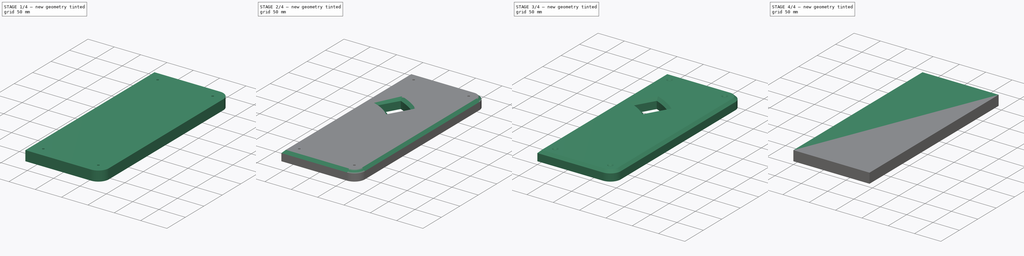
[diagram: build sequence overview — one tinted view per stage of 4, left to right]
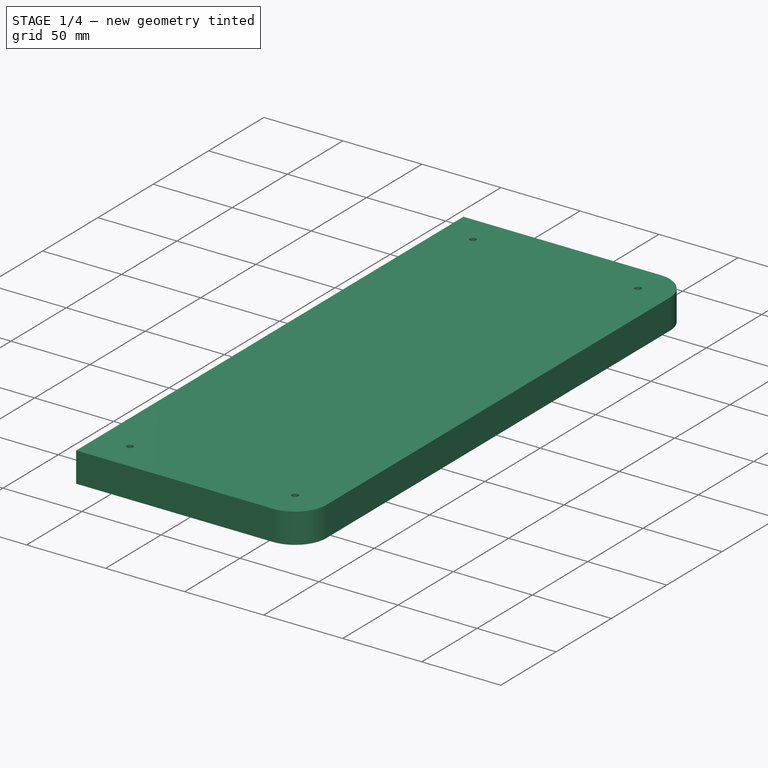
[diagram: stage 1 of 4 — iso view after this stage's code; geometry added in this stage tinted green]
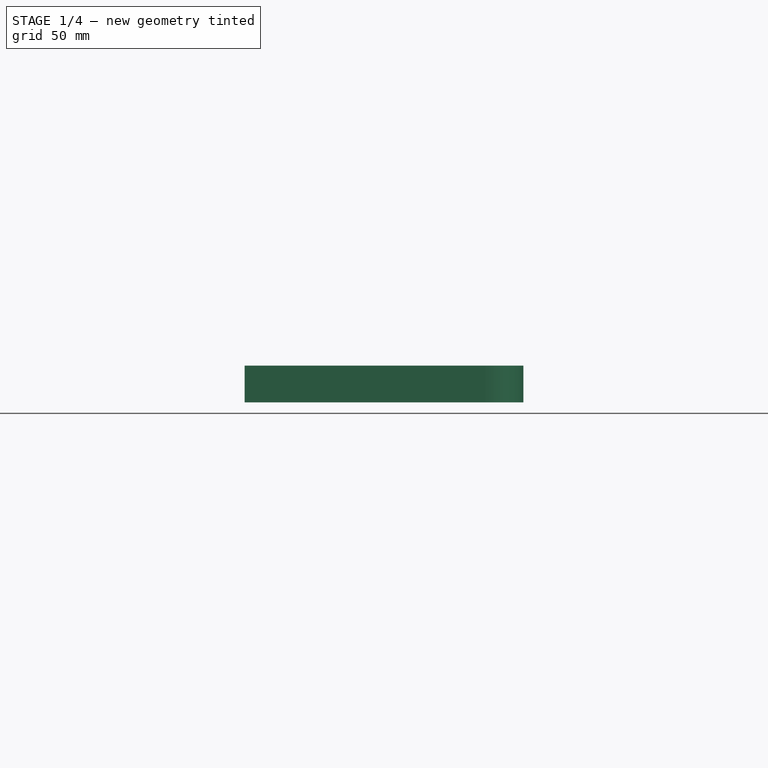
[diagram: stage 1 of 4 — front view after this stage's code; geometry added in this stage tinted green]
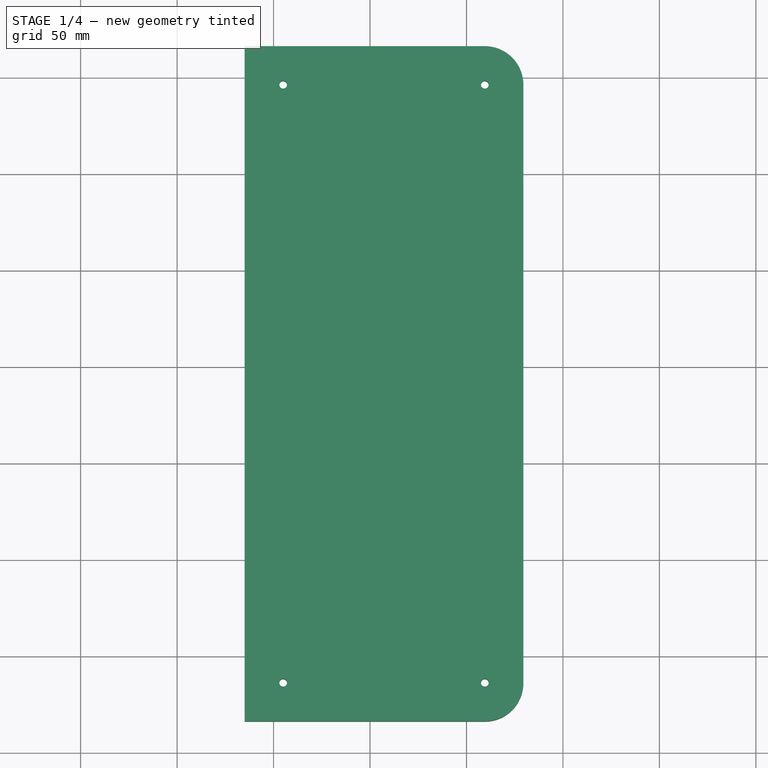
[diagram: stage 1 of 4 — top view after this stage's code; geometry added in this stage tinted green]
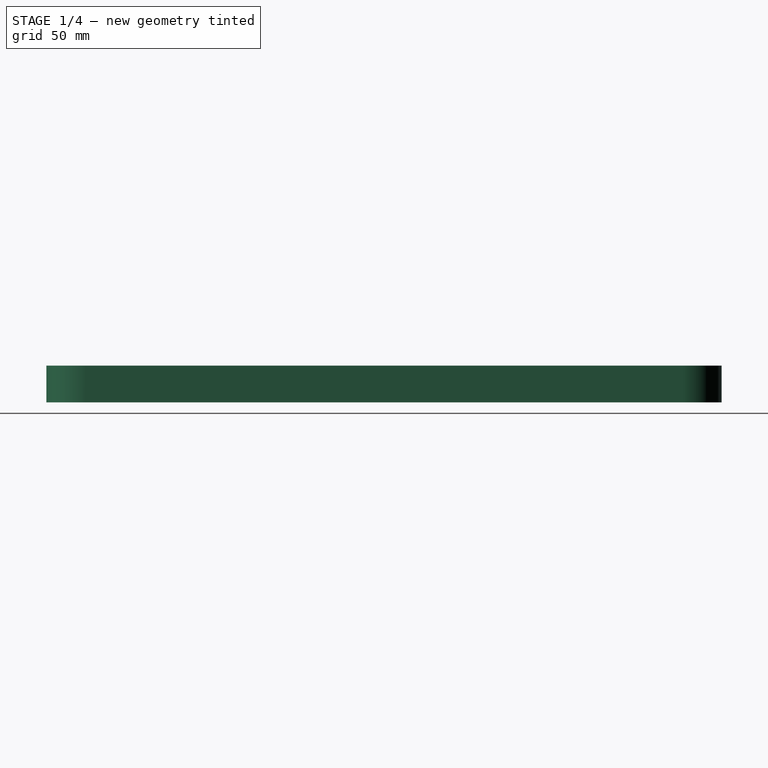
[diagram: stage 1 of 4 — right view after this stage's code; geometry added in this stage tinted green]
FCSTD DOCUMENT  (FreeCAD 0.19R23141 (Git))
Label: prize-panel-cam
License: All rights reserved
LicenseURL: http://en.wikipedia.org/wiki/All_rights_reserved
objects: Path::FeaturePython×11, Sketcher::SketchObject×5, Part::FeaturePython×4, PartDesign::Pocket×3, PartDesign::Chamfer×3, App::FeaturePython×2, App::DocumentObjectGroup×2, Path::FeatureCompoundPython×2, PartDesign::ShapeBinder×1, PartDesign::Pad×1, PartDesign::Fillet×1, PartDesign::Body×1
note: 29 computed .brp shape members not serialized (recipe doc carries the construction recipe); baked Part::Feature solids carry a one-line shape summary decoded from their .brp

FEATURE [Sketcher::SketchObject] Sketch  label="MasterSketch"
  MapMode = 5
  sketch-geometry (22):
    g0: Circle CenterX=-238 CenterY=0 CenterZ=0 NormalX=0 NormalY=0 NormalZ=1 AngleXU=0 Radius=16.25
    g1: Circle CenterX=225 CenterY=0 CenterZ=0 NormalX=0 NormalY=0 NormalZ=1 AngleXU=0 Radius=79.25
    g2: Circle CenterX=-159.323 CenterY=24.4049 CenterZ=0 NormalX=0 NormalY=0 NormalZ=1 AngleXU=0 Radius=66.125
    g3: Circle CenterX=-69.3232 CenterY=-36.4177 CenterZ=0 NormalX=0 NormalY=0 NormalZ=1 AngleXU=0 Radius=55.625
    g4: Circle CenterX=20.6768 CenterY=28.9777 CenterZ=0 NormalX=0 NormalY=0 NormalZ=1 AngleXU=0 Radius=81.875
    g5: Circle CenterX=110.677 CenterY=89.8003 CenterZ=0 NormalX=0 NormalY=0 NormalZ=1 AngleXU=0 Radius=66.125
    g6: LineSegment StartX=-275 StartY=216.2 StartZ=0 EndX=275 EndY=216.2 EndZ=0
    g7: LineSegment StartX=275 StartY=216.2 StartZ=0 EndX=275 EndY=-133.8 EndZ=0
    g8: LineSegment StartX=275 StartY=-133.8 StartZ=0 EndX=-275 EndY=-133.8 EndZ=0
    g9: LineSegment StartX=-275 StartY=-133.8 StartZ=0 EndX=-275 EndY=216.2 EndZ=0
    g10: Circle CenterX=-159.323 CenterY=24.4049 CenterZ=0 NormalX=0 NormalY=0 NormalZ=1 AngleXU=0 Radius=53
    g11: Circle CenterX=-69.3232 CenterY=-36.4177 CenterZ=0 NormalX=0 NormalY=0 NormalZ=1 AngleXU=0 Radius=29.375
    g12: Circle CenterX=20.6768 CenterY=28.9777 CenterZ=0 NormalX=0 NormalY=0 NormalZ=1 AngleXU=0 Radius=42.5
    g13: Circle CenterX=110.677 CenterY=89.8003 CenterZ=0 NormalX=0 NormalY=0 NormalZ=1 AngleXU=0 Radius=13.625
    g14: Circle CenterX=225 CenterY=0 CenterZ=0 NormalX=0 NormalY=0 NormalZ=1 AngleXU=0 Radius=63.5
    g15: LineSegment [constr] StartX=-159.323 StartY=24.4049 StartZ=0 EndX=-159.323 EndY=0 EndZ=0
    g16: LineSegment [constr] StartX=-69.3232 StartY=-36.4177 StartZ=0 EndX=-69.3232 EndY=0 EndZ=0
    g17: LineSegment [constr] StartX=20.6768 StartY=28.9777 StartZ=0 EndX=20.6768 EndY=0 EndZ=0
    g18: LineSegment [constr] StartX=110.677 StartY=89.8003 StartZ=0 EndX=110.677 EndY=0 EndZ=0
    g19: LineSegment [constr] StartX=-159.323 StartY=0 StartZ=0 EndX=-69.3232 EndY=0 EndZ=0
    g20: LineSegment [constr] StartX=-69.3232 StartY=0 StartZ=0 EndX=20.6768 EndY=0 EndZ=0
    g21: LineSegment [constr] StartX=20.6768 StartY=0 StartZ=0 EndX=110.677 EndY=0 EndZ=0
  constraints (61):
    c: PointOnObject(g0,g-1)
    c: PointOnObject(g1,g-1)
    c: Coincident(g6,g7)
    c: Coincident(g7,g8)
    c: Coincident(g8,g9)
    c: Coincident(g9,g6)
    c: Horizontal(g6)
    c: Vertical(g7)
    c: Vertical(g9)
    c: DistanceX(g6,g6) = 550
    c: DistanceY(g9,g9) = 350
    c: Radius(g2) = 66.125
    c: Radius(g0) = 16.25
    c: Tangent(g2,g0)
    c: Radius(g3) = 55.625
    c: Coincident(g10,g2)
    c: Coincident(g11,g3)
    c: Coincident(g12,g4)
    c: Coincident(g13,g5)
    c: Coincident(g14,g1)
    c: Radius(g10) = 53
    c: Radius(g11) = 29.375
    c: Tangent(g3,g10)
    c: Tangent(g4,g11)
    c: Tangent(g5,g12)
    c: Tangent(g1,g5)
    c: Radius(g4) = 81.875
    c: Radius(g12) = 42.5
    c: Radius(g5) = 66.125
    c: Radius(g13) = 13.625
    c: Coincident(g15,g2)
    c: PointOnObject(g15,g-1)
    c: Coincident(g16,g3)
    c: PointOnObject(g16,g-1)
    c: Vertical(g16)
    c: Coincident(g17,g4)
    c: PointOnObject(g17,g-1)
    c: Vertical(g17)
    c: Coincident(g18,g5)
    c: PointOnObject(g18,g-1)
    c: Vertical(g18)
    c: Vertical(g15)
    c: Coincident(g19,g15)
    c: Coincident(g19,g16)
    c: Coincident(g20,g16)
    c: Coincident(g20,g17)
    c: Coincident(g21,g17)
    c: Coincident(g21,g18)
    c: Radius(g1) = 79.25
    c: Radius(g14) = 63.5
    c: Distance(g19) = 90
    c: DistanceX(g6,g0) = 37
    c: Symmetric(g8,g7,g-2)
    c: Equal(g19,g20)
    c: Equal(g20,g21)
    c: Distance(g2,g3) = 108.625
    c: Distance(g3,g4) = 111.25
    c: Distance(g4,g5) = 108.625
    c: Distance(g5,g1) = 145.375
    c: DistanceY(g8,g-1) = 133.8
    c: DistanceX(g1,g6) = 50
FEATURE [PartDesign::ShapeBinder] ShapeBinder005
  Support = -> [Sketch]
  TraceSupport = false
FEATURE [Sketcher::SketchObject] Sketch024
  ExternalGeometry = -> [ShapeBinder005]
  MapMode = 5
  Support = -> [XY_Plane013]
  sketch-geometry (4):
    g0: LineSegment StartX=235 StartY=216.2 StartZ=0 EndX=379.5 EndY=216.2 EndZ=0
    g1: LineSegment StartX=379.5 StartY=216.2 StartZ=0 EndX=379.5 EndY=-133.8 EndZ=0
    g2: LineSegment StartX=379.5 StartY=-133.8 StartZ=0 EndX=235 EndY=-133.8 EndZ=0
    g3: LineSegment StartX=235 StartY=-133.8 StartZ=0 EndX=235 EndY=216.2 EndZ=0
  constraints (12):
    c: Coincident(g0,g1)
    c: Coincident(g1,g2)
    c: Coincident(g2,g3)
    c: Coincident(g3,g0)
    c: Horizontal(g0)
    c: Horizontal(g2)
    c: Vertical(g1)
    c: Vertical(g3)
    c: PointOnObject(g-3,g2)
    c: PointOnObject(g-3,g0)
    c: DistanceX(g0,g0) = 144.5
    c: DistanceX(g0,g-3) = 40
FEATURE [PartDesign::Pad] Pad017
  Direction = (1,1,1)
  Length = 19
  Length2 = 100
  Profile = -> Sketch024
  Refine = true
  Type = 0
FEATURE [PartDesign::Fillet] Fillet007
  Base = -> Pad017 [Edge2,Edge5]
  BaseFeature = -> Pad017
  Radius = 20
  Refine = true
  SupportTransform = false
FEATURE [Sketcher::SketchObject] Sketch025
  ExternalGeometry = -> [Fillet007]
  MapMode = 5
  Placement = pos=(0,0,19) rot=(0,0,1;0rad)
  Support = -> [Fillet007]
  sketch-geometry (4):
    g0: Circle CenterX=359.5 CenterY=196.2 CenterZ=0 NormalX=0 NormalY=0 NormalZ=1 AngleXU=0 Radius=2
    g1: Circle CenterX=359.5 CenterY=-113.8 CenterZ=0 NormalX=0 NormalY=0 NormalZ=1 AngleXU=0 Radius=2
    g2: Circle CenterX=255 CenterY=-113.8 CenterZ=0 NormalX=0 NormalY=0 NormalZ=1 AngleXU=0 Radius=2
    g3: Circle CenterX=255 CenterY=196.2 CenterZ=0 NormalX=0 NormalY=0 NormalZ=1 AngleXU=0 Radius=2
  constraints (10):
    c: Coincident(g0,g-3)
    c: Coincident(g1,g-4)
    c: DistanceX(g-5,g3) = 20
    c: Vertical(g3,g2)
    c: Horizontal(g2,g1)
    c: Equal(g3,g0)
    c: Equal(g0,g1)
    c: Equal(g1,g2)
    c: Radius(g2) = 2
    c: Horizontal(g3,g0)
FEATURE [PartDesign::Pocket] Pocket015
  BaseFeature = -> Fillet007
  Length = 5
  Length2 = 100
  Profile = -> Sketch025
  Refine = true
  Type = 1
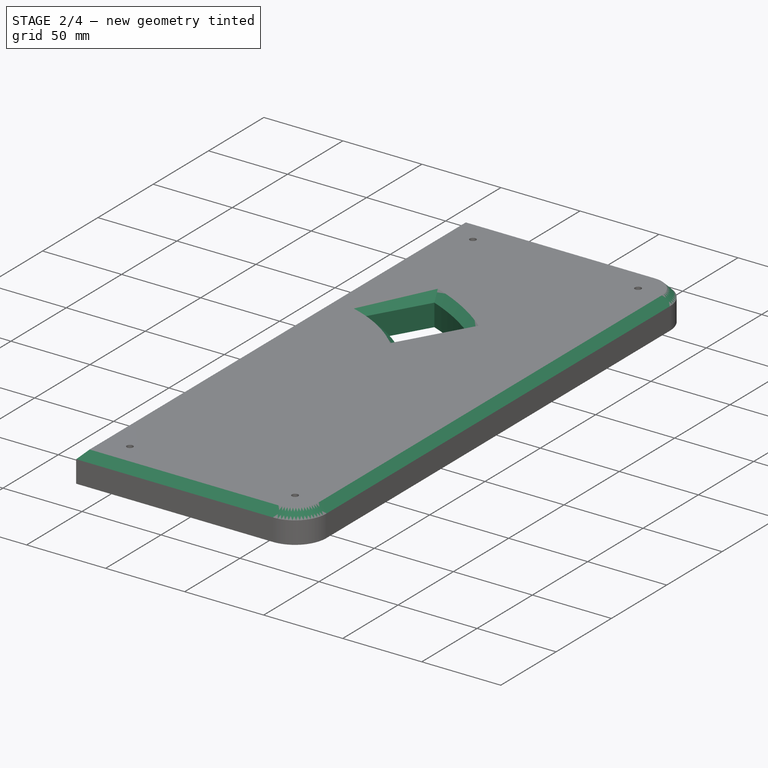
[diagram: stage 2 of 4 — iso view after this stage's code; geometry added in this stage tinted green]
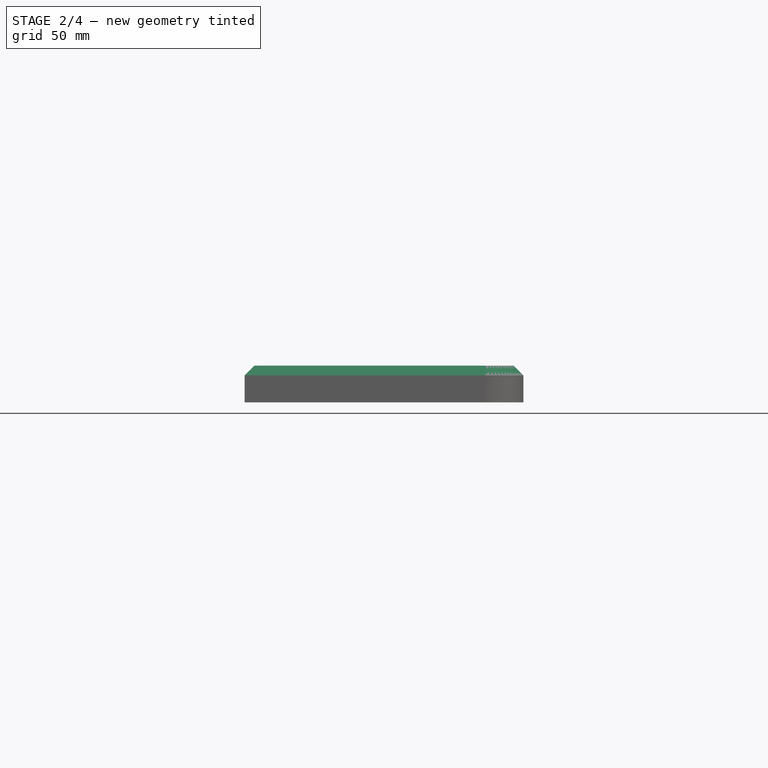
[diagram: stage 2 of 4 — front view after this stage's code; geometry added in this stage tinted green]
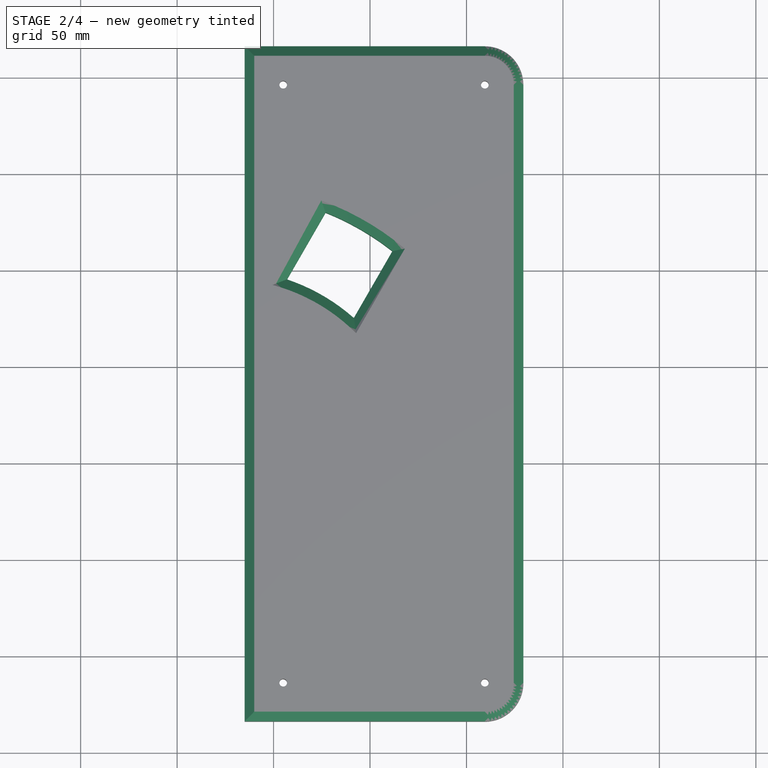
[diagram: stage 2 of 4 — top view after this stage's code; geometry added in this stage tinted green]
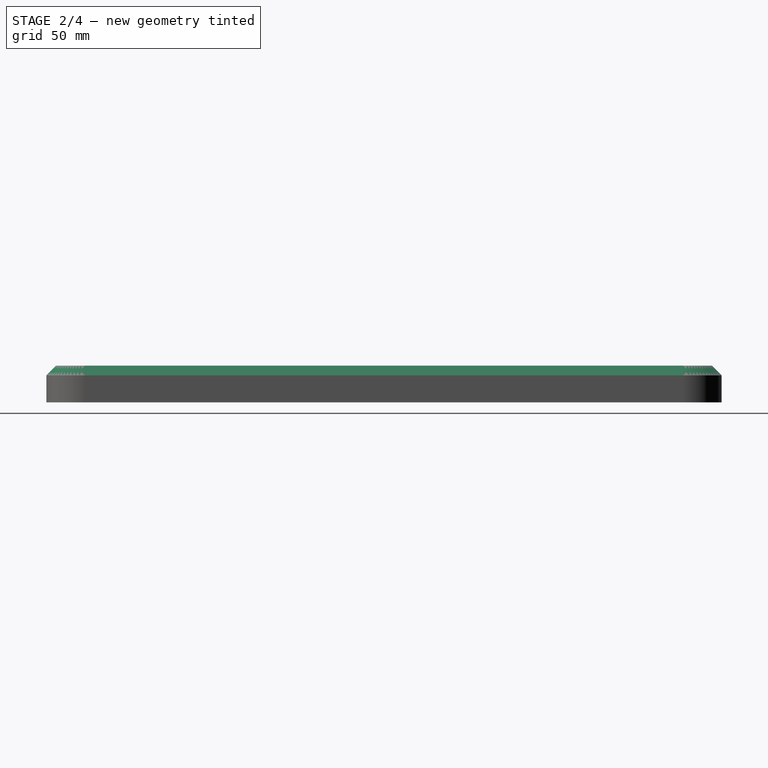
[diagram: stage 2 of 4 — right view after this stage's code; geometry added in this stage tinted green]
FEATURE [PartDesign::Chamfer] Chamfer005
  Angle = 45
  Base = -> Pocket015 [Edge4,Edge17]
  BaseFeature = -> Pocket015
  ChamferType = 0
  FlipDirection = false
  Refine = true
  Size = 5
  Size2 = 1
  SupportTransform = false
FEATURE [Sketcher::SketchObject] Sketch030
  ExternalGeometry = -> [ShapeBinder005]
  MapMode = 5
  Placement = pos=(0,0,19) rot=(0,0,1;0rad)
  Support = -> [Chamfer005]
  sketch-geometry (7):
    g0: ArcOfCircle [constr] CenterX=225 CenterY=0 CenterZ=0 NormalX=0 NormalY=0 NormalZ=1 AngleXU=0 Radius=140 StartAngle=5.23599 EndAngle=7.33038
    g1: LineSegment [constr] StartX=225 StartY=0 StartZ=0 EndX=295 EndY=-121.244 EndZ=0
    g2: LineSegment [constr] StartX=225 StartY=0 StartZ=0 EndX=295 EndY=121.244 EndZ=0
    g3: LineSegment StartX=256.962 StartY=95.359 StartZ=0 EndX=276.962 EndY=130 EndZ=0
    g4: LineSegment StartX=311.603 StartY=110 StartZ=0 EndX=291.603 EndY=75.359 EndZ=0
    g5: ArcOfCircle CenterX=225 CenterY=0 CenterZ=0 NormalX=0 NormalY=0 NormalZ=1 AngleXU=0 Radius=100.573 StartAngle=0.847002 EndAngle=1.24739
    g6: ArcOfCircle CenterX=225 CenterY=0 CenterZ=0 NormalX=0 NormalY=0 NormalZ=1 AngleXU=0 Radius=140 StartAngle=0.90385 EndAngle=1.19055
  constraints (20):
    c: Coincident(g0,g-3)
    c: Coincident(g1,g0)
    c: Coincident(g1,g0)
    c: Coincident(g2,g0)
    c: Coincident(g2,g0)
    c: Angle(g2) = 1.0472
    c: Symmetric(g0,g0,g-1)
    c: PointOnObject(g4,g0)
    c: Radius(g0) = 140
    c: Coincident(g5,g0)
    c: Coincident(g5,g3)
    c: Coincident(g5,g4)
    c: Coincident(g6,g5)
    c: Coincident(g6,g3)
    c: Coincident(g6,g4)
    c: Distance(g4,g3) = 40
    c: Parallel(g4,g3)
    c: Parallel(g3,g2)
    c: Symmetric(g3,g4,g2)
    c: Distance(g4) = 40
FEATURE [PartDesign::Pocket] Pocket020
  BaseFeature = -> Chamfer005
  Length = 5
  Length2 = 100
  Profile = -> Sketch030
  Refine = true
  Type = 1
FEATURE [PartDesign::Chamfer] Chamfer006
  Angle = 45
  Base = -> Pocket020 [Edge40,Edge39,Edge38,Edge37]
  BaseFeature = -> Pocket020
  ChamferType = 0
  FlipDirection = false
  Refine = true
  Size = 5
  Size2 = 1
  SupportTransform = false
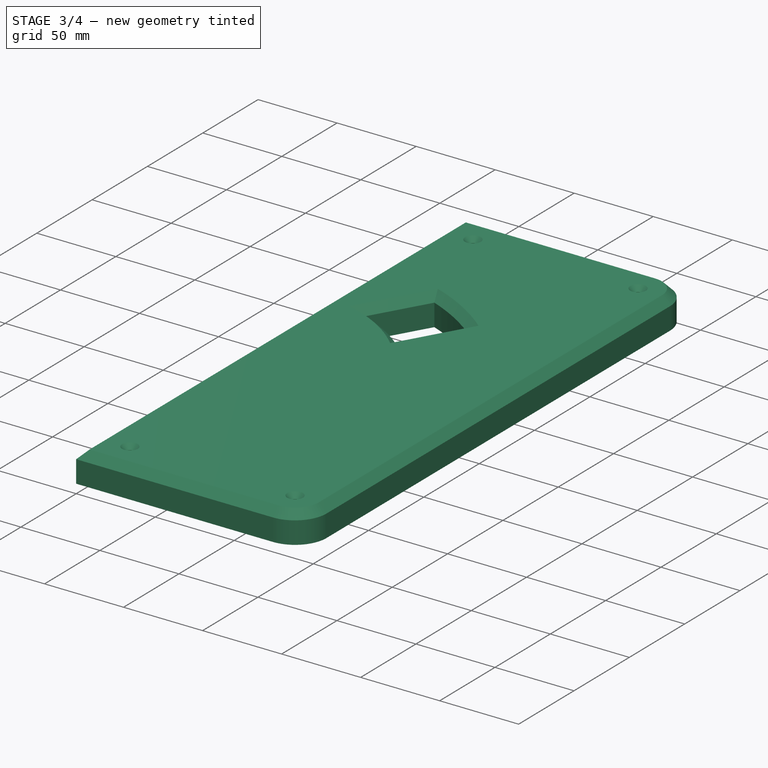
[diagram: stage 3 of 4 — iso view after this stage's code; geometry added in this stage tinted green]
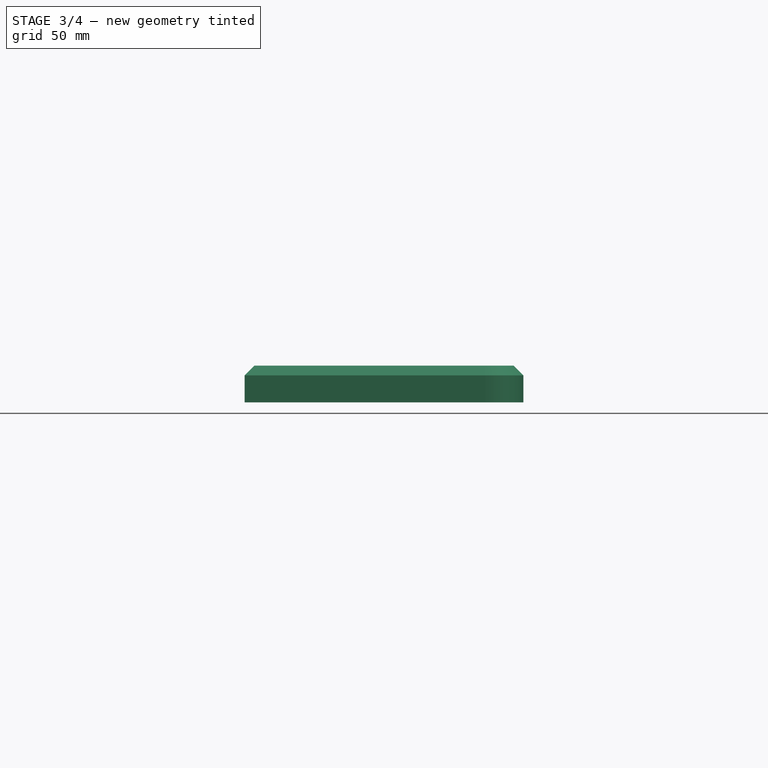
[diagram: stage 3 of 4 — front view after this stage's code; geometry added in this stage tinted green]
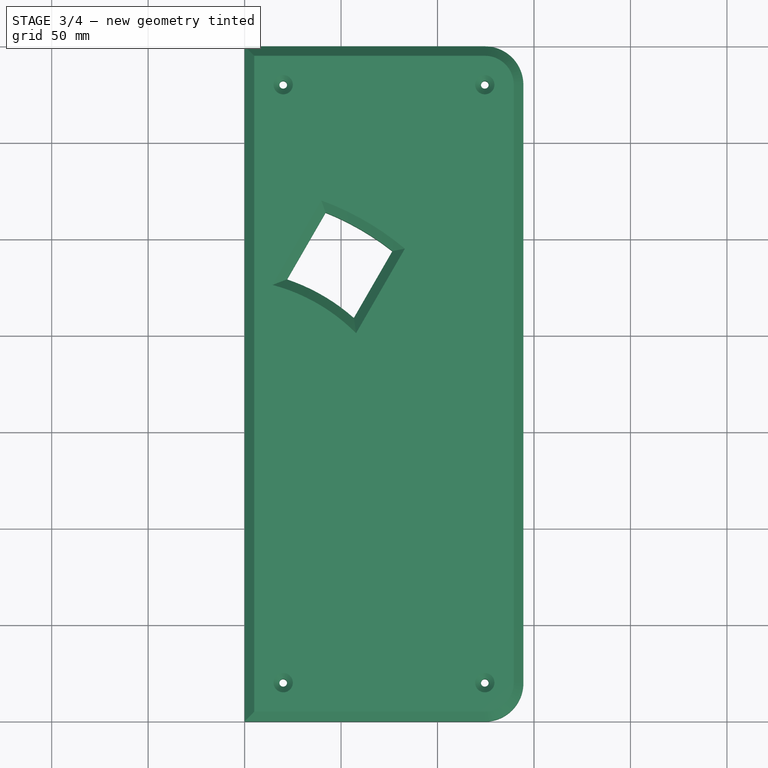
[diagram: stage 3 of 4 — top view after this stage's code; geometry added in this stage tinted green]
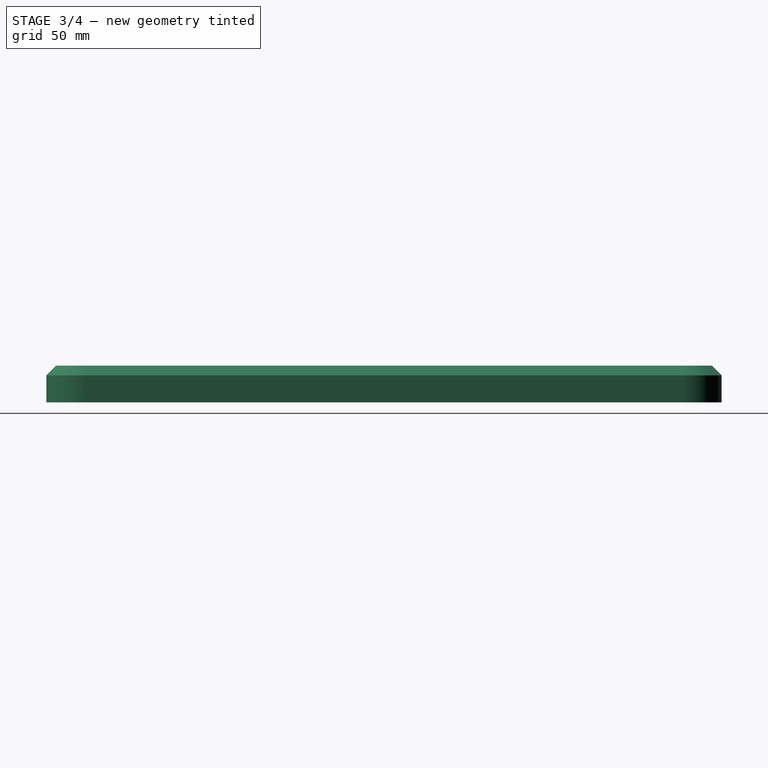
[diagram: stage 3 of 4 — right view after this stage's code; geometry added in this stage tinted green]
FEATURE [PartDesign::Chamfer] Chamfer007
  Angle = 45
  Base = -> Chamfer006 [Edge14,Edge13,Edge11,Edge12]
  BaseFeature = -> Chamfer006
  ChamferType = 0
  FlipDirection = false
  Refine = true
  Size = 3
  Size2 = 1
  SupportTransform = false
FEATURE [Sketcher::SketchObject] Sketch045
  ExternalGeometry = -> [Chamfer007]
  MapMode = 5
  Placement = pos=(0,0,0) rot=(1,0,0;3.14159rad)
  Support = -> [Chamfer007]
  sketch-geometry (4):
    g0: LineSegment StartX=235 StartY=108.8 StartZ=0 EndX=366 EndY=108.8 EndZ=0
    g1: LineSegment StartX=366 StartY=108.8 StartZ=0 EndX=366 EndY=88.8 EndZ=0
    g2: LineSegment StartX=366 StartY=88.8 StartZ=0 EndX=235 EndY=88.8 EndZ=0
    g3: LineSegment StartX=235 StartY=88.8 StartZ=0 EndX=235 EndY=108.8 EndZ=0
  constraints (12):
    c: Coincident(g0,g1)
    c: Coincident(g1,g2)
    c: Coincident(g2,g3)
    c: Coincident(g3,g0)
    c: Horizontal(g0)
    c: Horizontal(g2)
    c: Vertical(g1)
    c: Vertical(g3)
    c: PointOnObject(g0,g-3)
    c: DistanceY(g0,g-3) = 25
    c: DistanceY(g3,g3) = 20
    c: DistanceX(g0,g0) = 131
FEATURE [PartDesign::Pocket] Pocket029
  BaseFeature = -> Chamfer007
  Length = 14
  Length2 = 100
  Profile = -> Sketch045
  Refine = true
  Type = 0
FEATURE [Path::FeaturePython] Profile  # Path/CAM operation (typed FeaturePython)
  Active = true
  AreaParams:
    Tolerance = 1e-07
    FitArcs = True
    Simplify = False
    CleanDistance = 0.0
    Accuracy = 0.01
    Unit = 1.0
    MinArcPoints = 4
    MaxArcPoints = 100
    ClipperScale = 10000000.0
    Fill = 0
    Coplanar = 0
    Reorient = True
    Outline = False
    Explode = False
    OpenMode = 0
    Deflection = 0.01
    SubjectFill = 0
    ClipFill = 0
    Offset = -2.5
    ExtraPass = 0
    Stepover = 0.0
    LastStepover = 0.0
    JoinType = 0
    EndType = 0
    MiterLimit = 2.0
    RoundPrecision = 0.0
    PocketMode = 0
    ToolRadius = 1.0
    PocketExtraOffset = 0.0
    PocketStepover = 0.0
    PocketLastStepover = 0.0
    FromCenter = False
    Angle = 45.0
    AngleShift = 0.0
    Shift = 0.0
    Thicken = False
    SectionCount = -1
    Stepdown = 1.0
    SectionOffset = 0.0
    SectionTolerance = 1e-06
    SectionMode = 2
    Project = False
  AttemptInverseAngle = true
  Base = -> [Clone]
  ClearanceHeight = 5
  CoolantMode = None
  CycleTime = 00:01:20
  Direction = 0
  EnableRotation = 0
  ExpandProfile = 0
  ExpandProfileStepOver = 100
  FinalDepth = -19.5
  HandleMultipleFeatures = 1
  InverseAngle = false
  JoinType = 0
  LimitDepthToFace = true
  MiterLimit = 0.1
  OffsetExtra = 0
  OpFinalDepth = -19
  OpStartDepth = 0
  OpStockZMax = 0
  OpStockZMin = -19
  OpToolDiameter = 5
  PathParams = {'orientation': 1, 'feedrate': 16.666666666666668, 'feedrate_v': 1.6666666666666667, 'verbose': True, 'resume_height': 3.0, 'retraction': 5.0, 'return_end': True, 'preamble': False}
  ReverseDirection = false
  SafeHeight = 3
  Side = 1
  StartDepth = 0
  StartPoint = (0,0,0)
  StepDown = 5
  ToolController = -> Default_Tool
  UseComp = true
  UseStartPoint = false
  processCircles = false
  processHoles = false
  processPerimeter = true
  expr: StartDepth = OpStartDepth
  expr: FinalDepth = -19.5
  expr: StepDown = OpToolDiameter
  expr: SafeHeight = OpStockZMax + SetupSheet.SafeHeightOffset
  expr: ClearanceHeight = OpStockZMax + SetupSheet.ClearanceHeightOffset
FEATURE [Path::FeaturePython] DressupTag  # Path/CAM operation (typed FeaturePython)
  Angle = 45
  Base = -> Profile
  Height = 5
  Positions = (2) [(41.5363,223.063,0),(54.5414,255.21,0)]
  Radius = 0
  SegmentationFactor = 50
  Width = 3.52
FEATURE [Path::FeaturePython] Profile001  # Path/CAM operation (typed FeaturePython)
  Active = true
  AreaParams:
    Tolerance = 1e-07
    FitArcs = True
    Simplify = False
    CleanDistance = 0.0
    Accuracy = 0.01
    Unit = 1.0
    MinArcPoints = 4
    MaxArcPoints = 100
    ClipperScale = 10000000.0
    Fill = 0
    Coplanar = 0
    Reorient = True
    Outline = False
    Explode = False
    OpenMode = 0
    Deflection = 0.01
    SubjectFill = 0
    ClipFill = 0
    Offset = 2.5
    ExtraPass = 0
    Stepover = 0.0
    LastStepover = 0.0
    JoinType = 0
    EndType = 0
    MiterLimit = 2.0
    RoundPrecision = 0.0
    PocketMode = 0
    ToolRadius = 1.0
    PocketExtraOffset = 0.0
    PocketStepover = 0.0
    PocketLastStepover = 0.0
    FromCenter = False
    Angle = 45.0
    AngleShift = 0.0
    Shift = 0.0
    Thicken = False
    SectionCount = -1
    Stepdown = 1.0
    SectionOffset = 0.0
    SectionTolerance = 1e-06
    SectionMode = 2
    Project = False
  AttemptInverseAngle = true
  ClearanceHeight = 5
  CoolantMode = None
  CycleTime = 00:04:47
  Direction = 0
  EnableRotation = 0
  ExpandProfile = 0
  ExpandProfileStepOver = 100
  FinalDepth = -19.5
  HandleMultipleFeatures = 1
  InverseAngle = false
  JoinType = 0
  LimitDepthToFace = true
  MiterLimit = 0.1
  OffsetExtra = 0
  OpFinalDepth = -19
  OpStartDepth = 0
  OpStockZMax = 0
  OpStockZMin = -19
  OpToolDiameter = 5
  PathParams = {'orientation': 1, 'feedrate': 16.666666666666668, 'feedrate_v': 1.6666666666666667, 'verbose': True, 'resume_height': 3.0, 'retraction': 5.0, 'return_end': True, 'preamble': False}
  ReverseDirection = false
  SafeHeight = 3
  Side = 0
  StartDepth = 0
  StartPoint = (0,0,0)
  StepDown = 5
  ToolController = -> Default_Tool
  UseComp = true
  UseStartPoint = false
  processCircles = false
  processHoles = false
  processPerimeter = true
  expr: StartDepth = OpStartDepth
  expr: FinalDepth = -19.5
  expr: StepDown = OpToolDiameter
  expr: SafeHeight = OpStockZMax + SetupSheet.SafeHeightOffset
  expr: ClearanceHeight = OpStockZMax + SetupSheet.ClearanceHeightOffset
FEATURE [Path::FeaturePython] DressupTag001  # Path/CAM operation (typed FeaturePython)
  Angle = 45
  Base = -> Profile001
  Height = 5
  Positions = (4) [(-2.5,87.5,0),(-2.5,262.5,0),(146.999,252.559,0),(147,97.5196,0)]
  Radius = 0
  SegmentationFactor = 50
  Width = 35
FEATURE [Path::FeatureCompoundPython] Operations  # Path/CAM operation (typed FeaturePython)
  Group = -> [DressupTag,DressupTag001]
  UsePlacements = false
FEATURE [Path::FeaturePython] Job  # Path/CAM operation (typed FeaturePython)
  CycleTime = 00:06:07
  Fixtures = G54
  GeometryTolerance = 0.01
  LastPostProcessDate = 2020-12-04 19:26:58.863579
  LastPostProcessOutput = <userpath>/cad/gears-puzzle-2/cam/prize-panel-top-cut.FCStd
  Model = -> Model
  Operations = -> Operations
  OrderOutputBy = 0
  PostProcessor = 4
  SetupSheet = -> SetupSheet
  SplitOutput = false
  Stock = -> Stock001
  ToolController = -> [Default_Tool]
FEATURE [Part::FeaturePython] Clone001  label="Model-PrizePanel001"  # Draft clone (typed FeaturePython)
  AttacherType = Attacher::AttachEngine3D
  Fuse = false
  Objects = -> [Body013]
  PathResource = Model
  Placement = pos=(-235,133.8,-19) rot=(0,0,1;0rad)
  Scale = (1,1,1)
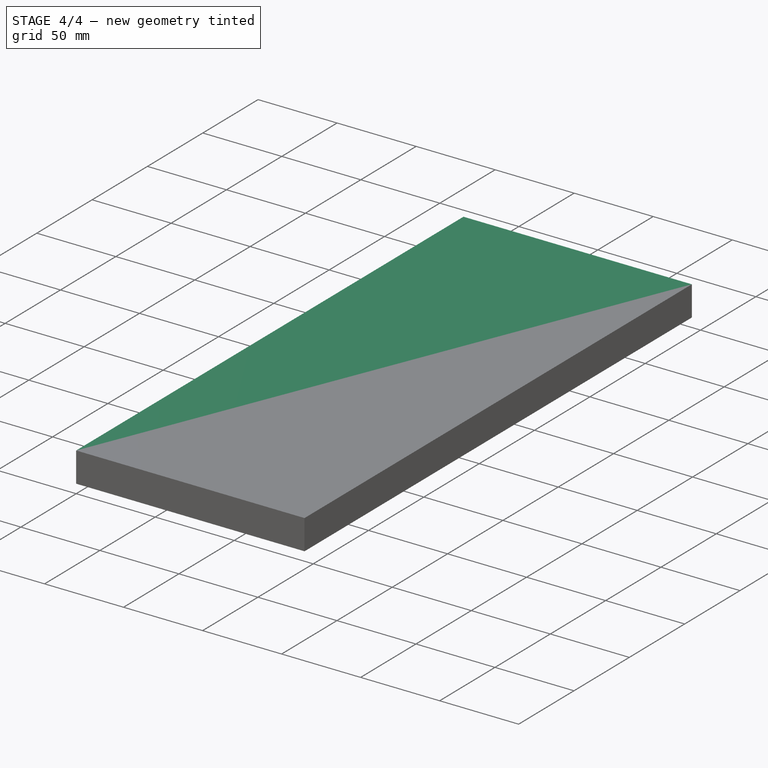
[diagram: stage 4 of 4 — iso view after this stage's code; geometry added in this stage tinted green]
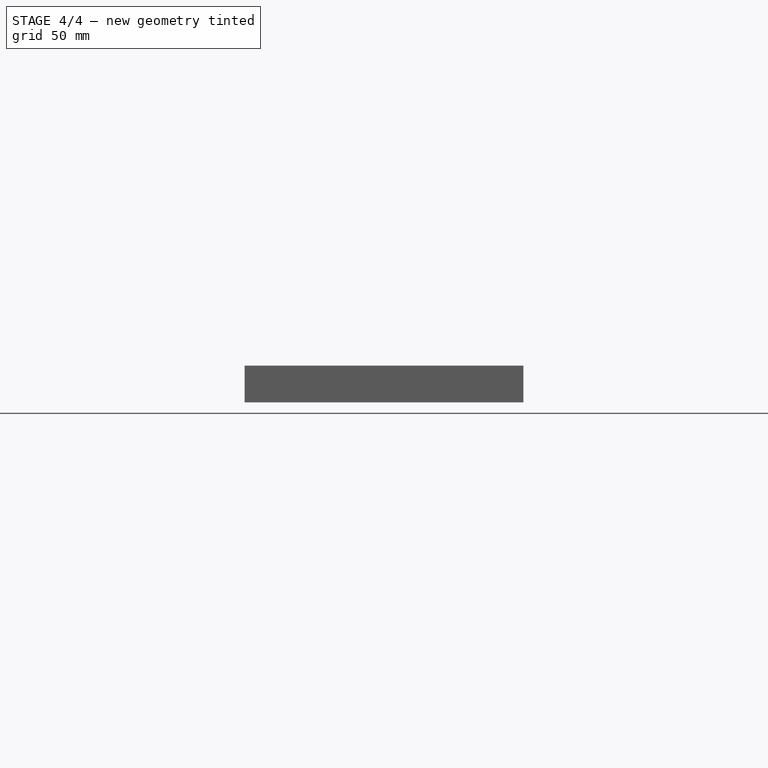
[diagram: stage 4 of 4 — front view after this stage's code; geometry added in this stage tinted green]
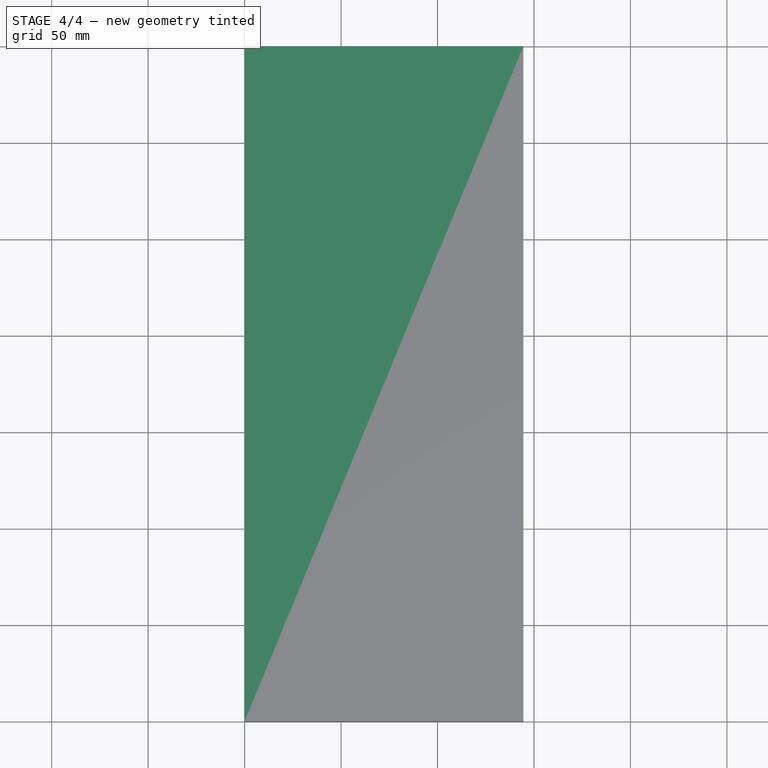
[diagram: stage 4 of 4 — top view after this stage's code; geometry added in this stage tinted green]
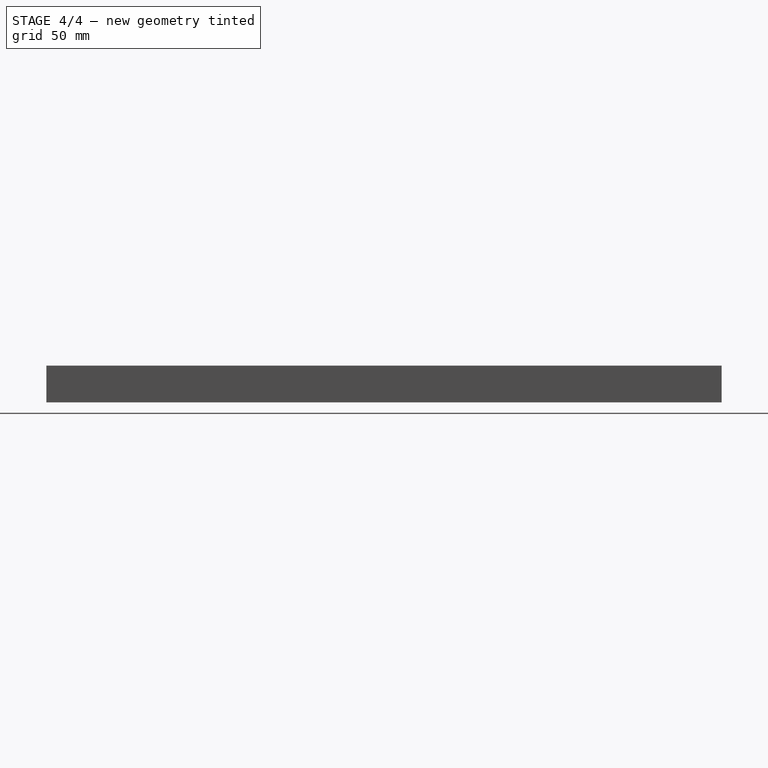
[diagram: stage 4 of 4 — right view after this stage's code; geometry added in this stage tinted green]
FEATURE [PartDesign::Body] Body013  label="PrizePanel"
  Group = -> [ShapeBinder005,Sketch024,Pad017,Fillet007,Sketch025,Pocket015,Chamfer005,Sketch030,Pocket020,Chamfer006,Chamfer007,Sketch045,Pocket029]
  Origin = -> Origin013
  Placement = pos=(0,0,10) rot=(0,0,1;0rad)
  Tip = -> Pocket029
FEATURE [App::FeaturePython] SetupSheet  # Path/CAM operation (typed FeaturePython)
  ClearanceHeightExpression = OpStockZMax+SetupSheet.ClearanceHeightOffset
  ClearanceHeightOffset = 5
  CoolantMode = 0
  CoolantModes = None | Flood | Mist
  FinalDepthExpression = OpFinalDepth
  HorizRapid = 0
  SafeHeightExpression = OpStockZMax+SetupSheet.SafeHeightOffset
  SafeHeightOffset = 3
  StartDepthExpression = OpStartDepth
  StepDownExpression = OpToolDiameter
  VertRapid = 0
FEATURE [Part::FeaturePython] Clone  label="Model-PrizePanel"  # Draft clone (typed FeaturePython)
  AttacherType = Attacher::AttachEngine3D
  Fuse = false
  Objects = -> [Body013]
  PathResource = Model
  Placement = pos=(-235,133.8,-19) rot=(0,0,1;0rad)
  Scale = (1,1,1)
FEATURE [App::DocumentObjectGroup] Model
  Group = -> [Clone]
FEATURE [Path::FeaturePython] Default_Tool  label="TC: Default Tool"  # Path/CAM operation (typed FeaturePython)
  HorizFeed = 16.6667
  HorizRapid = 0
  SpindleDir = 0
  SpindleSpeed = 24000
  ToolNumber = 1
  VertFeed = 1.66667
  VertRapid = 0
  expr: VertRapid = SetupSheet.VertRapid
  expr: HorizRapid = SetupSheet.HorizRapid
FEATURE [Part::FeaturePython] Stock001  # WARN: FeaturePython — macro-defined, semantics opaque (R4)
  Base = -> Model
  ExtXneg = 0
  ExtXpos = 0
  ExtYneg = 0
  ExtYpos = 0
  ExtZneg = 0
  ExtZpos = 0
  Placement = pos=(0,0,-19) rot=(0,0,1;0rad)
  StockType = FromBase
FEATURE [Path::FeaturePython] Default_Tool001  label="TC: Default Tool001"  # Path/CAM operation (typed FeaturePython)
  HorizFeed = 16.6667
  HorizRapid = 0
  SpindleDir = 0
  SpindleSpeed = 24000
  ToolNumber = 1
  VertFeed = 1.66667
  VertRapid = 0
  expr: HorizRapid = SetupSheet001.HorizRapid
  expr: VertRapid = SetupSheet001.VertRapid
FEATURE [App::FeaturePython] SetupSheet001  # Path/CAM operation (typed FeaturePython)
  ClearanceHeightExpression = OpStockZMax+SetupSheet.ClearanceHeightOffset
  ClearanceHeightOffset = 5
  CoolantMode = 0
  CoolantModes = None | Flood | Mist
  FinalDepthExpression = OpFinalDepth
  HorizRapid = 0
  SafeHeightExpression = OpStockZMax+SetupSheet.SafeHeightOffset
  SafeHeightOffset = 3
  StartDepthExpression = OpStartDepth
  StepDownExpression = OpToolDiameter
  VertRapid = 0
FEATURE [App::DocumentObjectGroup] Model001
  Group = -> [Clone001]
FEATURE [Part::FeaturePython] Stock002  # WARN: FeaturePython — macro-defined, semantics opaque (R4)
  Base = -> Model001
  ExtXneg = 0
  ExtXpos = 0
  ExtYneg = 0
  ExtYpos = 0
  ExtZneg = 0
  ExtZpos = 0
  Placement = pos=(0,0,-19) rot=(0,0,1;0rad)
  StockType = FromBase
FEATURE [Path::FeaturePython] Deburr  # Path/CAM operation (typed FeaturePython)
  Active = true
  Base = -> [Clone001]
  ClearanceHeight = 5
  CoolantMode = None
  CycleTime = 00:01:34
  Direction = 0
  EntryPoint = 0
  ExtraDepth = 0
  Join = 0
  OpStockZMax = 0
  OpStockZMin = -19
  OpToolDiameter = 6
  SafeHeight = 3
  Side = 0
  StartDepth = 0
  StepDown = 0
  ToolController = -> Default_Tool001
  Width = 2.6
  expr: StepDown = 0mm
  expr: SafeHeight = OpStockZMax + SetupSheet.SafeHeightOffset
  expr: ClearanceHeight = OpStockZMax + SetupSheet.ClearanceHeightOffset
FEATURE [Path::FeaturePython] Deburr001  # Path/CAM operation (typed FeaturePython)
  Active = true
  Base = -> [Clone001]
  ClearanceHeight = 5
  CoolantMode = None
  CycleTime = 00:00:37
  Direction = 0
  EntryPoint = 0
  ExtraDepth = 0
  Join = 0
  OpStockZMax = 0
  OpStockZMin = -19
  OpToolDiameter = 6
  SafeHeight = 3
  Side = 0
  StartDepth = 0
  StepDown = 0
  ToolController = -> Default_Tool001
  Width = 2.5
  expr: StepDown = 0mm
  expr: SafeHeight = OpStockZMax + SetupSheet.SafeHeightOffset
  expr: ClearanceHeight = OpStockZMax + SetupSheet.ClearanceHeightOffset
FEATURE [Path::FeaturePython] Deburr002  # Path/CAM operation (typed FeaturePython)
  Active = true
  Base = -> [Clone001]
  ClearanceHeight = 5
  CoolantMode = None
  CycleTime = 00:01:33
  Direction = 0
  EntryPoint = 0
  ExtraDepth = 0
  Join = 0
  OpStockZMax = 0
  OpStockZMin = -19
  OpToolDiameter = 6
  SafeHeight = 3
  Side = 0
  StartDepth = 0
  StepDown = 0
  ToolController = -> Default_Tool001
  Width = 2.5
  expr: StepDown = 0mm
  expr: SafeHeight = OpStockZMax + SetupSheet.SafeHeightOffset
  expr: ClearanceHeight = OpStockZMax + SetupSheet.ClearanceHeightOffset
FEATURE [Path::FeatureCompoundPython] Operations001  # Path/CAM operation (typed FeaturePython)
  Group = -> [Deburr,Deburr001,Deburr002]
  UsePlacements = false
FEATURE [Path::FeaturePython] Job001  # Path/CAM operation (typed FeaturePython)
  CycleTime = 00:03:44
  Fixtures = G54
  GeometryTolerance = 0.01
  LastPostProcessDate = 2020-12-04 19:31:17.296633
  LastPostProcessOutput = <userpath>/cad/gears-puzzle-2/gcode/prize-panel-chamfer.gcode
  Model = -> Model001
  Operations = -> Operations001
  OrderOutputBy = 0
  PostProcessor = 4
  SetupSheet = -> SetupSheet001
  SplitOutput = false
  Stock = -> Stock002
  ToolController = -> [Default_Tool001]
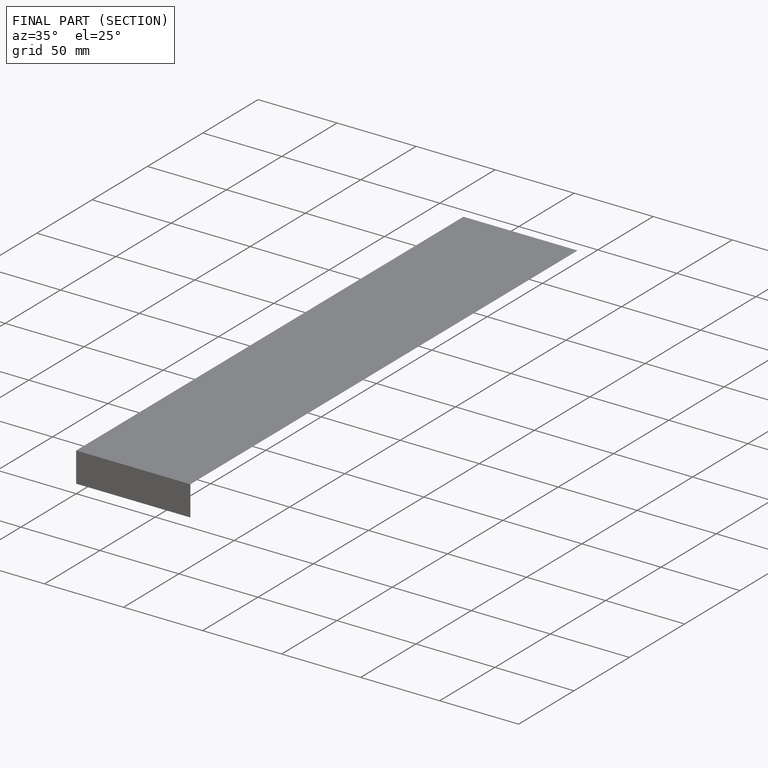
[diagram: finished part — half-section view (interior)]
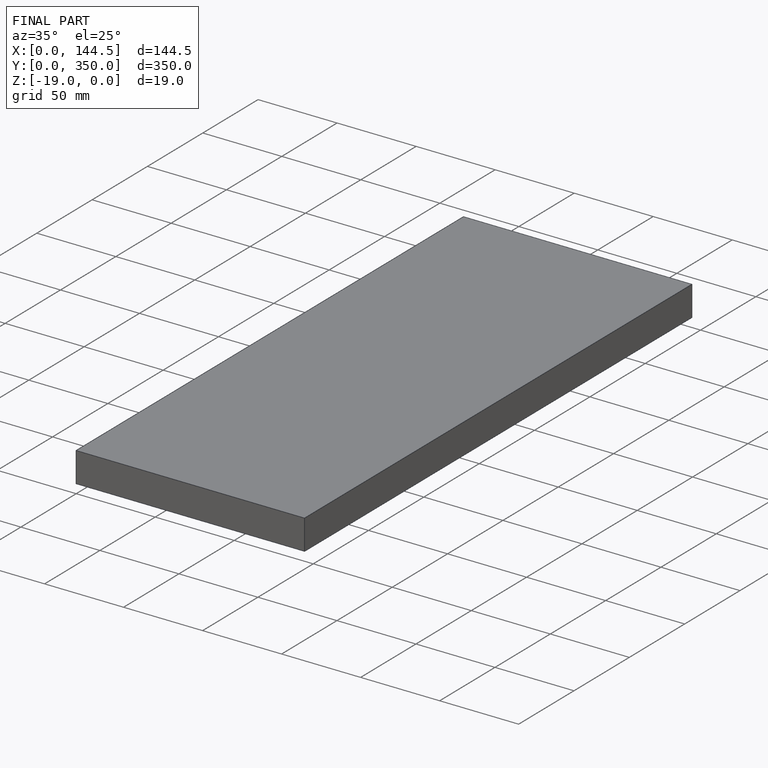
[diagram: finished part — iso view with bounding-box wireframe]
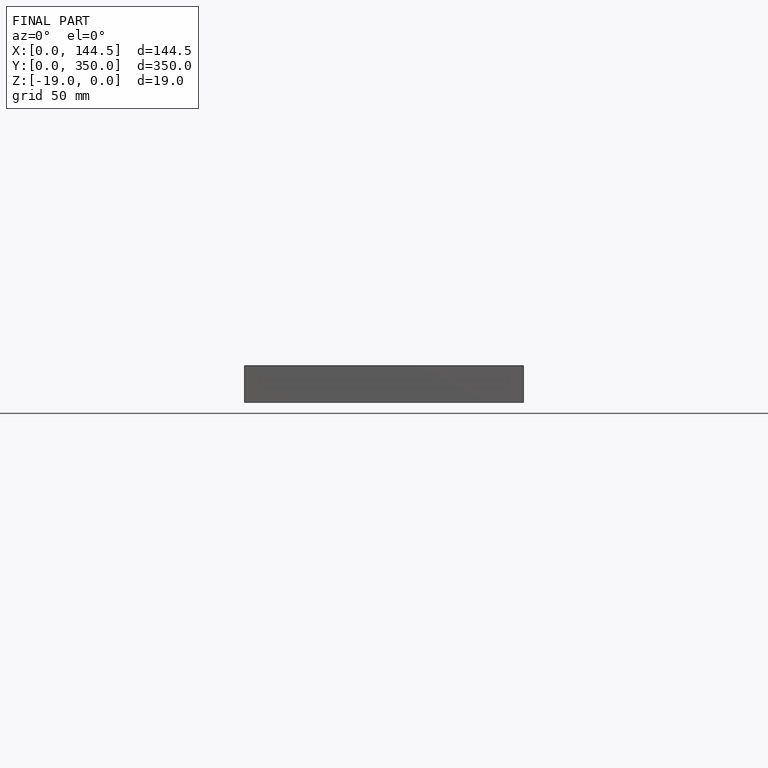
[diagram: finished part — front view with bounding-box wireframe]
